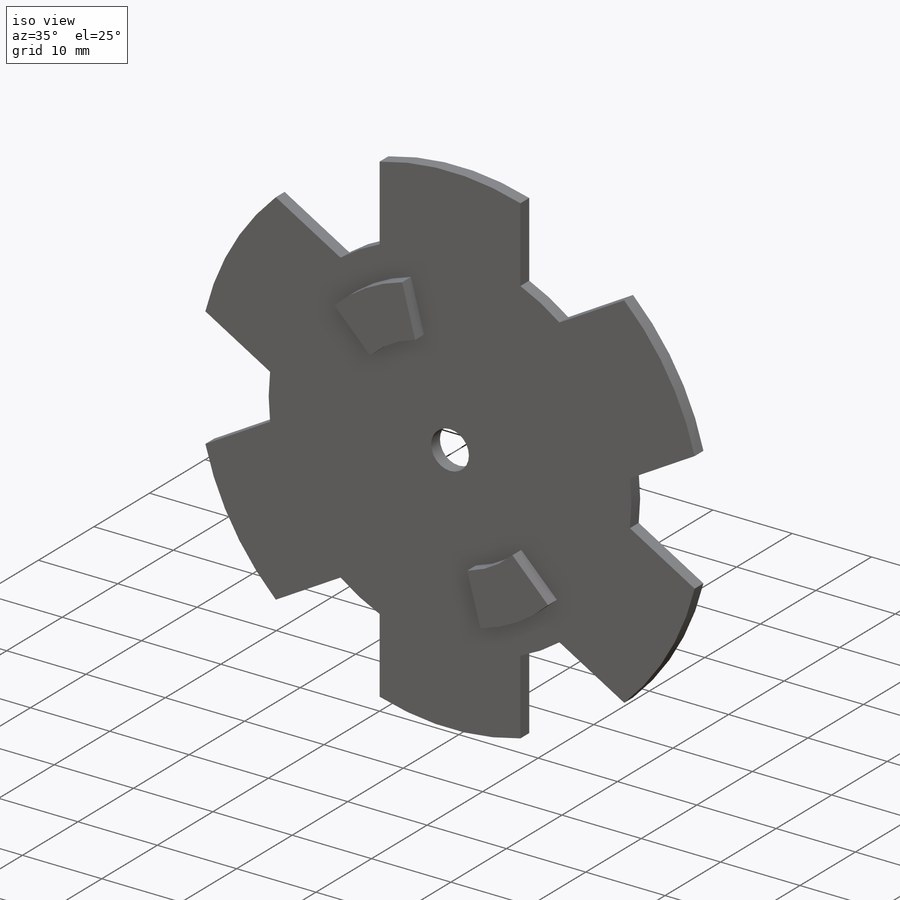
[diagram: iso view]
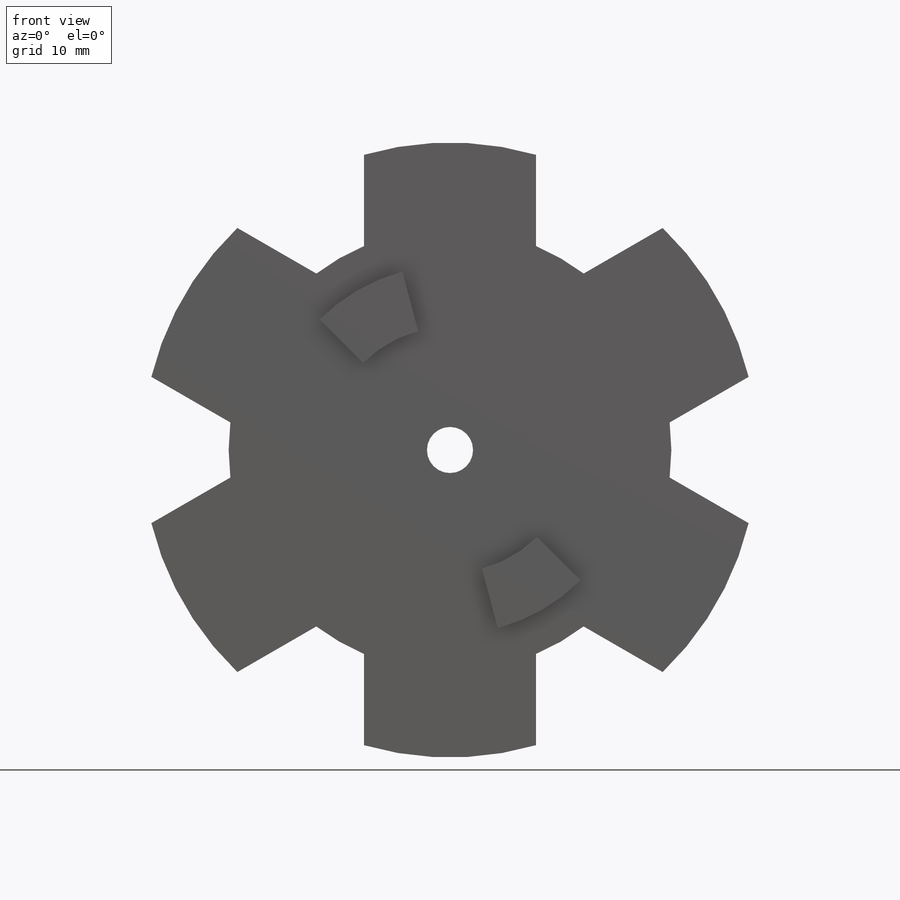
[diagram: front view]
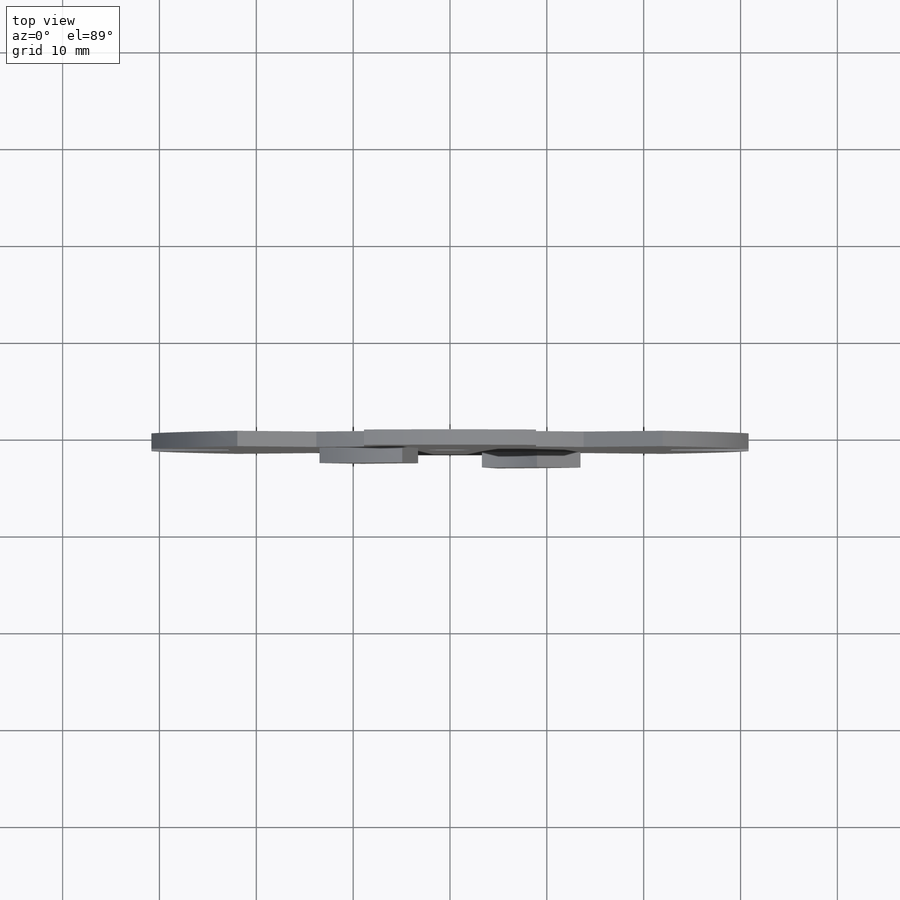
[diagram: top view]
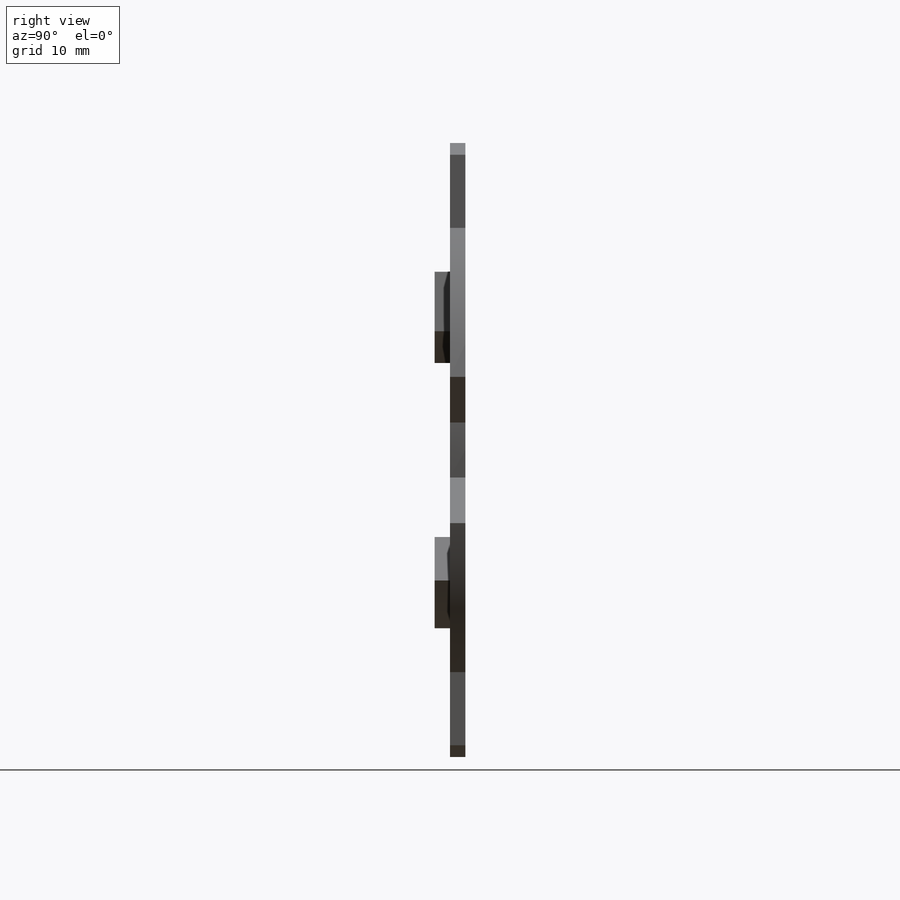
[diagram: right view]
SOLIDWORKS PART (.sldprt)
format: sldprt  version: not decoded by parser v0  size: 291,328 bytes
history: native  units: mm
features: sketch x3, extrude x2, material x1, cut_extrude x1 (+11 scaffold rows collapsed)
feature tree (18):
  scaffold x11  (default folders/planes/origin — collapsed)
  material  "Material <not specified>"
  sketch  "Sketch1"  dims[c1.D1=76.2mm c1.D5=6.604mm c1.D6=63.5mm c2.D5=6.604mm c2.D1=31.75mm c2.D2=31.75mm c2.D3=15.875mm c2.D4=15.875mm c2.D7=~13.807687mm c3.D7=60.0deg c3.D8=~13.53082mm c4.D8=30.0deg c4.D1=~78.217096mm c5.D1=30.0deg c5.D2=~30.124239mm c6.D2=14.0deg c6.D3=~39.30054mm c7.D3=30.0deg c7.D4=~9.147373mm c8.D4=196.0deg c8.D5=~8.953817mm c9.D5=196.0deg c9.D6=~9.147373mm c10.D6=196.0deg c10.D3=~61.818341mm c11.D3=30.0deg c11.D2=~14.639039mm c12.D2=14.0deg]
  extrude  "Extrude1"  Depth=1.5875mm
  sketch  "Sketch2"  dims[c1.D2=11.1252mm c1.D5=33.9852mm c2.D2=4.7625mm c2.D1=~69.418237mm c3.D1=45.0deg c3.D3=11.43mm c3.D4=~52.699861mm c4.D4=45.0deg]
  cut_extrude  "Cut-Extrude1"  [1 undecoded]
  sketch  "Sketch3"  dims[c1.D1=~19.095068mm c1.D2=~19.333832mm c1.D4=38.1mm c1.D5=25.4mm c2.D1=~24.654708mm c3.D1=30.0deg c3.D2=2.0574mm c4.D2=~10.596919deg c5.D2=~16.483546mm c6.D2=5.0deg c6.D3=~36.141536mm c7.D3=60.0deg c7.D2=19.05mm c8.D2=15.0deg c8.D4=19.05mm]
  extrude  "Boss-Extrude1"  Depth=1.5875mm
decode coverage: 5 of 6 modeling features carry decoded parameters
note: ~ marks probable driven/reference dimensions
note: 1 parameter value undecoded
note: suppression state not decoded; provenance and decode notes live in map.json
